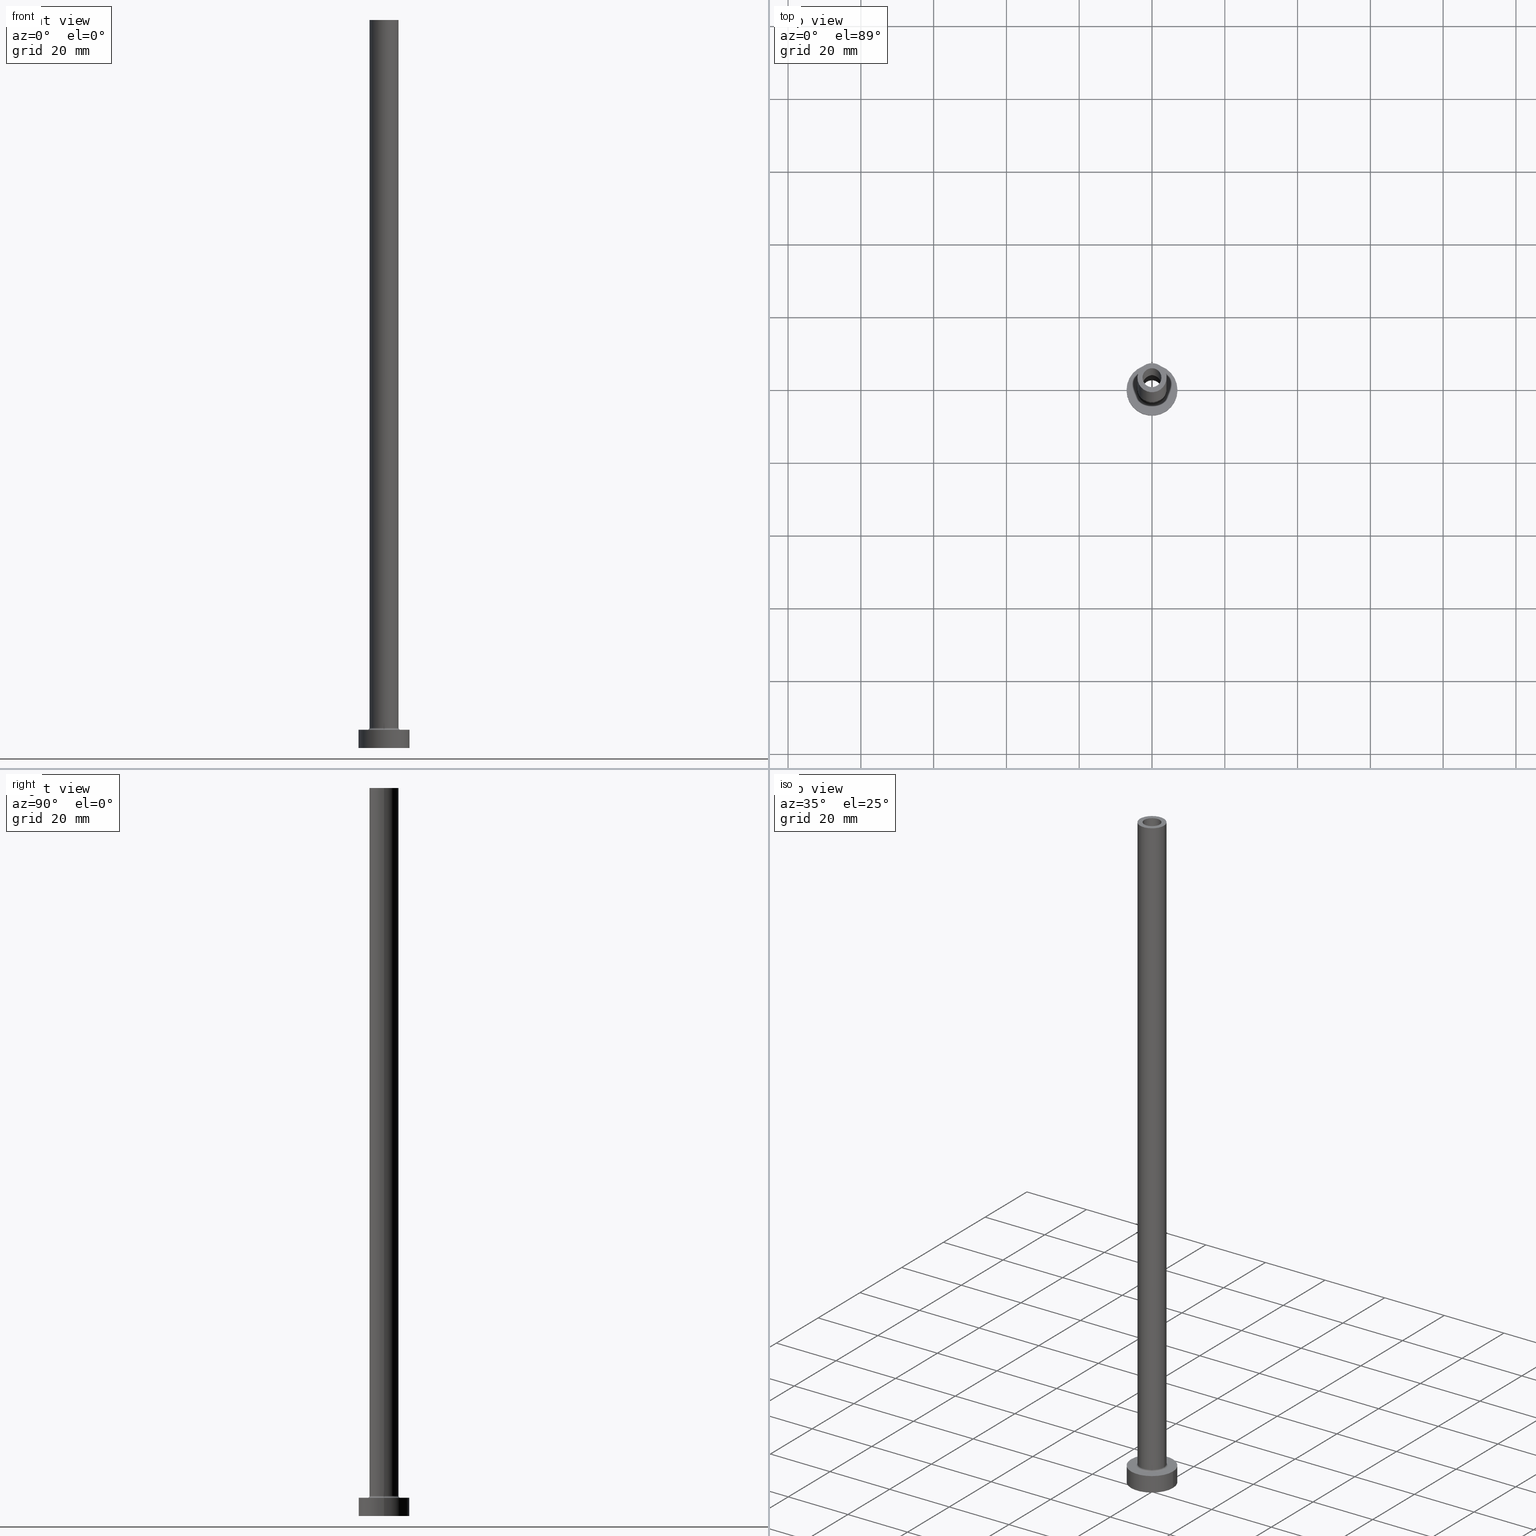
[diagram: canonical four-view strip — front | top / right | iso, engineering-drawing reading convention]
A machine part, canonical four-view strip (front | top / right | iso — engineering-drawing reading convention). The complete STEP part file that produces these views, byte-faithful:
ISO-10303-21;
HEADER;
FILE_DESCRIPTION (( 'STEP AP203' ),
    '1' );
FILE_NAME ('12f7.STEP',
    '2023-02-13T16:30:39',
    ( '' ),
    ( '' ),
    'SwSTEP 2.0',
    'SolidWorks 2019',
    '' );
FILE_SCHEMA (( 'CONFIG_CONTROL_DESIGN' ));
ENDSEC;

DATA;
#1 = DIRECTION ( 'NONE',  ( 1.000000000000000000, 0.000000000000000000, 0.000000000000000000 ) ) ;
#2 = CARTESIAN_POINT ( 'NONE',  ( 0.000000000000000000, 0.000000000000000000, 200.0000000000000000 ) ) ;
#3 = CIRCLE ( 'NONE', #268, 2.750000000000000000 ) ;
#4 = APPROVAL_PERSON_ORGANIZATION ( #178, #272, #236 ) ;
#5 = FACE_OUTER_BOUND ( 'NONE', #34, .T. ) ;
#6 = PRODUCT_RELATED_PRODUCT_CATEGORY ( 'detail', '', ( #193 ) ) ;
#7 = CARTESIAN_POINT ( 'NONE',  ( 0.000000000000000000, 0.000000000000000000, 155.0000000000000284 ) ) ;
#8 = AXIS2_PLACEMENT_3D ( 'NONE', #425, #69, #211 ) ;
#9 = LOCAL_TIME ( 17, 30, 39.00000000000000000, #240 ) ;
#10 = ADVANCED_FACE ( 'NONE', ( #317 ), #77, .T. ) ;
#11 = CARTESIAN_POINT ( 'NONE',  ( 0.000000000000000000, 0.000000000000000000, 0.000000000000000000 ) ) ;
#12 = ORIENTED_EDGE ( 'NONE', *, *, #459, .F. ) ;
#13 = CARTESIAN_POINT ( 'NONE',  ( 0.000000000000000000, 0.000000000000000000, 162.7781745930520572 ) ) ;
#14 = PERSON_AND_ORGANIZATION ( #136, #256 ) ;
#15 = CARTESIAN_POINT ( 'NONE',  ( -2.600000000000000089, 0.000000000000000000, 200.0000000000000000 ) ) ;
#16 = CIRCLE ( 'NONE', #373, 2.600000000000000089 ) ;
#17 = VERTEX_POINT ( 'NONE', #257 ) ;
#18 = SECURITY_CLASSIFICATION ( '', '', #277 ) ;
#19 = CARTESIAN_POINT ( 'NONE',  ( 2.600000000000000089, 3.184081677783117698E-16, 200.0000000000000000 ) ) ;
#20 = DIRECTION ( 'NONE',  ( 1.000000000000000000, 0.000000000000000000, 0.000000000000000000 ) ) ;
#21 = VERTEX_POINT ( 'NONE', #434 ) ;
#22 = CARTESIAN_POINT ( 'NONE',  ( 0.000000000000000000, 0.000000000000000000, 200.0000000000000000 ) ) ;
#23 = DIRECTION ( 'NONE',  ( 0.000000000000000000, 0.000000000000000000, 1.000000000000000000 ) ) ;
#24 = ORIENTED_EDGE ( 'NONE', *, *, #444, .T. ) ;
#25 = APPROVAL_STATUS ( 'not_yet_approved' ) ;
#26 = DIRECTION ( 'NONE',  ( -1.000000000000000000, 0.000000000000000000, 0.000000000000000000 ) ) ;
#27 = APPROVAL_PERSON_ORGANIZATION ( #323, #86, #397 ) ;
#28 = DIRECTION ( 'NONE',  ( 0.000000000000000000, 0.000000000000000000, 1.000000000000000000 ) ) ;
#29 = DIRECTION ( 'NONE',  ( 0.000000000000000000, 0.000000000000000000, 1.000000000000000000 ) ) ;
#30 = ORIENTED_EDGE ( 'NONE', *, *, #171, .F. ) ;
#31 = DATE_AND_TIME ( #74, #119 ) ;
#32 = DIRECTION ( 'NONE',  ( 1.000000000000000000, 0.000000000000000000, 0.000000000000000000 ) ) ;
#33 = VERTEX_POINT ( 'NONE', #191 ) ;
#34 = EDGE_LOOP ( 'NONE', ( #338, #52, #254, #126 ) ) ;
#35 = COORDINATED_UNIVERSAL_TIME_OFFSET ( 1, 0, .AHEAD. ) ;
#36 = DIRECTION ( 'NONE',  ( -0.000000000000000000, -0.000000000000000000, -1.000000000000000000 ) ) ;
#37 = ORIENTED_EDGE ( 'NONE', *, *, #395, .T. ) ;
#38 = AXIS2_PLACEMENT_3D ( 'NONE', #121, #185, #84 ) ;
#39 = CIRCLE ( 'NONE', #289, 7.000000000000000000 ) ;
#40 = CARTESIAN_POINT ( 'NONE',  ( -7.000000000000000000, 0.000000000000000000, 5.000000000000000000 ) ) ;
#41 = CARTESIAN_POINT ( 'NONE',  ( 2.750000000000000000, 3.367778697655221012E-16, 0.000000000000000000 ) ) ;
#42 = DIRECTION ( 'NONE',  ( 0.000000000000000000, 0.000000000000000000, -1.000000000000000000 ) ) ;
#43 = CARTESIAN_POINT ( 'NONE',  ( 0.000000000000000000, 0.000000000000000000, 155.0000000000000284 ) ) ;
#44 = DIRECTION ( 'NONE',  ( -1.000000000000000000, 0.000000000000000000, 0.000000000000000000 ) ) ;
#45 = CLOSED_SHELL ( 'NONE', ( #224, #364, #169, #163, #354, #10, #219, #266, #336, #284, #110, #81, #376, #402 ) ) ;
#46 = AXIS2_PLACEMENT_3D ( 'NONE', #428, #247, #111 ) ;
#47 = APPROVAL_PERSON_ORGANIZATION ( #438, #326, #407 ) ;
#48 = DIRECTION ( 'NONE',  ( -1.000000000000000000, 1.224646799147351482E-16, 0.000000000000000000 ) ) ;
#49 = PRODUCT_DEFINITION_SHAPE ( 'NONE', 'NONE',  #154 ) ;
#50 = EDGE_CURVE ( 'NONE', #161, #279, #370, .T. ) ;
#51 = VERTEX_POINT ( 'NONE', #337 ) ;
#52 = ORIENTED_EDGE ( 'NONE', *, *, #409, .T. ) ;
#53 = PERSON_AND_ORGANIZATION_ROLE ( 'creator' ) ;
#54 = CARTESIAN_POINT ( 'NONE',  ( 2.600000000000000089, 3.184081677783117698E-16, 155.0000000000000284 ) ) ;
#55 = VECTOR ( 'NONE', #275, 1000.000000000000000 ) ;
#56 = EDGE_LOOP ( 'NONE', ( #238, #270 ) ) ;
#57 = DIRECTION ( 'NONE',  ( 0.000000000000000000, 0.000000000000000000, -1.000000000000000000 ) ) ;
#58 = DIRECTION ( 'NONE',  ( 1.000000000000000000, 0.000000000000000000, 0.000000000000000000 ) ) ;
#59 = EDGE_CURVE ( 'NONE', #382, #282, #131, .T. ) ;
#60 = ORIENTED_EDGE ( 'NONE', *, *, #117, .T. ) ;
#61 = LINE ( 'NONE', #99, #55 ) ;
#62 = ORIENTED_EDGE ( 'NONE', *, *, #409, .F. ) ;
#63 = CIRCLE ( 'NONE', #168, 7.000000000000000000 ) ;
#64 = ORIENTED_EDGE ( 'NONE', *, *, #137, .F. ) ;
#65 = CARTESIAN_POINT ( 'NONE',  ( 0.000000000000000000, 0.000000000000000000, 200.0000000000000000 ) ) ;
#66 = SHAPE_DEFINITION_REPRESENTATION ( #49, #294 ) ;
#67 = DIRECTION ( 'NONE',  ( 0.000000000000000000, 0.000000000000000000, 1.000000000000000000 ) ) ;
#68 = ORIENTED_EDGE ( 'NONE', *, *, #291, .T. ) ;
#69 = DIRECTION ( 'NONE',  ( 0.000000000000000000, 0.000000000000000000, 1.000000000000000000 ) ) ;
#70 = ORIENTED_EDGE ( 'NONE', *, *, #444, .F. ) ;
#71 = CIRCLE ( 'NONE', #333, 4.000000000000000000 ) ;
#72 = LINE ( 'NONE', #359, #159 ) ;
#73 = CC_DESIGN_PERSON_AND_ORGANIZATION_ASSIGNMENT ( #342, #53, ( #154 ) ) ;
#74 = CALENDAR_DATE ( 2023, 13, 2 ) ;
#75 = FACE_OUTER_BOUND ( 'NONE', #356, .T. ) ;
#76 = DIRECTION ( 'NONE',  ( -0.000000000000000000, -0.000000000000000000, -1.000000000000000000 ) ) ;
#77 = CYLINDRICAL_SURFACE ( 'NONE', #432, 7.000000000000000000 ) ;
#78 = AXIS2_PLACEMENT_3D ( 'NONE', #451, #29, #90 ) ;
#79 = FACE_BOUND ( 'NONE', #56, .T. ) ;
#80 =( GEOMETRIC_REPRESENTATION_CONTEXT ( 3 ) GLOBAL_UNCERTAINTY_ASSIGNED_CONTEXT ( ( #220 ) ) GLOBAL_UNIT_ASSIGNED_CONTEXT ( ( #378, #92, #302 ) ) REPRESENTATION_CONTEXT ( 'NONE', 'WORKASPACE' ) );
#81 = ADVANCED_FACE ( 'NONE', ( #216 ), #158, .F. ) ;
#82 = CARTESIAN_POINT ( 'NONE',  ( 0.000000000000000000, 0.000000000000000000, 5.000000000000000000 ) ) ;
#83 = EDGE_CURVE ( 'NONE', #21, #303, #123, .T. ) ;
#84 = DIRECTION ( 'NONE',  ( 1.000000000000000000, 0.000000000000000000, 0.000000000000000000 ) ) ;
#85 = TOROIDAL_SURFACE ( 'NONE', #217, 4.500000000000000888, 0.5000000000000000000 ) ;
#86 = APPROVAL ( #245, 'NEUR�EN�' ) ;
#87 = ORIENTED_EDGE ( 'NONE', *, *, #214, .T. ) ;
#88 = EDGE_LOOP ( 'NONE', ( #392, #422, #68, #203 ) ) ;
#89 = CC_DESIGN_DATE_AND_TIME_ASSIGNMENT ( #424, #390, ( #18 ) ) ;
#90 = DIRECTION ( 'NONE',  ( 1.000000000000000000, 0.000000000000000000, 0.000000000000000000 ) ) ;
#91 = ORIENTED_EDGE ( 'NONE', *, *, #137, .T. ) ;
#92 =( NAMED_UNIT ( * ) PLANE_ANGLE_UNIT ( ) SI_UNIT ( $, .RADIAN. ) );
#93 = DIRECTION ( 'NONE',  ( 0.000000000000000000, 0.000000000000000000, 1.000000000000000000 ) ) ;
#94 = CIRCLE ( 'NONE', #404, 4.000000000000000000 ) ;
#95 = ORIENTED_EDGE ( 'NONE', *, *, #83, .F. ) ;
#96 = CYLINDRICAL_SURFACE ( 'NONE', #374, 2.600000000000000089 ) ;
#97 = CYLINDRICAL_SURFACE ( 'NONE', #401, 2.600000000000000089 ) ;
#98 = VERTEX_POINT ( 'NONE', #363 ) ;
#99 = CARTESIAN_POINT ( 'NONE',  ( 4.000000000000000000, 4.898587196589412829E-16, 200.0000000000000000 ) ) ;
#100 = CARTESIAN_POINT ( 'NONE',  ( 0.000000000000000000, 0.000000000000000000, 155.0000000000000284 ) ) ;
#101 = DIRECTION ( 'NONE',  ( 0.000000000000000000, 0.000000000000000000, -1.000000000000000000 ) ) ;
#102 = CIRCLE ( 'NONE', #411, 2.750000000000000000 ) ;
#103 = ORIENTED_EDGE ( 'NONE', *, *, #246, .T. ) ;
#104 = PERSON_AND_ORGANIZATION ( #136, #256 ) ;
#105 = DIRECTION ( 'NONE',  ( 0.000000000000000000, 0.000000000000000000, 1.000000000000000000 ) ) ;
#106 = EDGE_LOOP ( 'NONE', ( #415, #259 ) ) ;
#107 = LINE ( 'NONE', #40, #353 ) ;
#108 = MANIFOLD_SOLID_BREP ( 'Odebrat vysunut�m4', #45 ) ;
#109 = EDGE_CURVE ( 'NONE', #348, #17, #190, .T. ) ;
#110 = ADVANCED_FACE ( 'NONE', ( #226 ), #150, .F. ) ;
#111 = DIRECTION ( 'NONE',  ( 1.000000000000000000, 0.000000000000000000, 0.000000000000000000 ) ) ;
#112 = AXIS2_PLACEMENT_3D ( 'NONE', #210, #332, #329 ) ;
#113 = DATE_TIME_ROLE ( 'creation_date' ) ;
#114 = PRODUCT_DEFINITION_FORMATION_WITH_SPECIFIED_SOURCE ( 'LIBOVOLN�', '', #193, .NOT_KNOWN. ) ;
#115 = FACE_BOUND ( 'NONE', #106, .T. ) ;
#116 = CYLINDRICAL_SURFACE ( 'NONE', #143, 7.000000000000000000 ) ;
#117 = EDGE_CURVE ( 'NONE', #17, #51, #118, .T. ) ;
#118 = CIRCLE ( 'NONE', #208, 4.500000000000000888 ) ;
#119 = LOCAL_TIME ( 17, 30, 39.00000000000000000, #349 ) ;
#120 = DIRECTION ( 'NONE',  ( 0.000000000000000000, 0.000000000000000000, 1.000000000000000000 ) ) ;
#121 = CARTESIAN_POINT ( 'NONE',  ( 0.000000000000000000, 0.000000000000000000, 5.000000000000000000 ) ) ;
#122 = ORIENTED_EDGE ( 'NONE', *, *, #50, .F. ) ;
#123 = CIRCLE ( 'NONE', #38, 7.000000000000000000 ) ;
#124 = ORIENTED_EDGE ( 'NONE', *, *, #316, .F. ) ;
#125 = LINE ( 'NONE', #19, #218 ) ;
#126 = ORIENTED_EDGE ( 'NONE', *, *, #426, .F. ) ;
#127 = CARTESIAN_POINT ( 'NONE',  ( 0.000000000000000000, 0.000000000000000000, 0.000000000000000000 ) ) ;
#128 = EDGE_CURVE ( 'NONE', #282, #382, #102, .T. ) ;
#129 = DIRECTION ( 'NONE',  ( 1.000000000000000000, 0.000000000000000000, 0.000000000000000000 ) ) ;
#130 = CARTESIAN_POINT ( 'NONE',  ( 0.000000000000000000, 0.000000000000000000, 5.000000000000000000 ) ) ;
#131 = CIRCLE ( 'NONE', #455, 2.750000000000000000 ) ;
#132 = CC_DESIGN_APPROVAL ( #326, ( #154 ) ) ;
#133 = ORIENTED_EDGE ( 'NONE', *, *, #291, .F. ) ;
#134 = DIRECTION ( 'NONE',  ( -1.000000000000000000, 0.000000000000000000, 0.000000000000000000 ) ) ;
#135 = VERTEX_POINT ( 'NONE', #54 ) ;
#136 = PERSON ( 'NEUR�EN�', 'NEUR�EN�', 'NEUR�EN�', ('NEUR�EN�'), ('NEUR�EN�'), ('NEUR�EN�') ) ;
#137 = EDGE_CURVE ( 'NONE', #51, #17, #234, .T. ) ;
#138 = CC_DESIGN_PERSON_AND_ORGANIZATION_ASSIGNMENT ( #174, #453, ( #114 ) ) ;
#139 = PERSON_AND_ORGANIZATION_ROLE ( 'design_supplier' ) ;
#140 = APPLICATION_CONTEXT ( 'configuration controlled 3d designs of mechanical parts and assemblies' ) ;
#141 = DIRECTION ( 'NONE',  ( 1.000000000000000000, 0.000000000000000000, 0.000000000000000000 ) ) ;
#142 = AXIS2_PLACEMENT_3D ( 'NONE', #198, #408, #201 ) ;
#143 = AXIS2_PLACEMENT_3D ( 'NONE', #250, #76, #44 ) ;
#144 = CARTESIAN_POINT ( 'NONE',  ( -2.600000000000000089, 0.000000000000000000, 155.0000000000000284 ) ) ;
#145 = ORIENTED_EDGE ( 'NONE', *, *, #117, .F. ) ;
#146 = EDGE_LOOP ( 'NONE', ( #62, #406, #164, #423 ) ) ;
#147 = CARTESIAN_POINT ( 'NONE',  ( 0.000000000000000000, 0.000000000000000000, 5.500000000000005329 ) ) ;
#148 = ORIENTED_EDGE ( 'NONE', *, *, #128, .F. ) ;
#149 = CARTESIAN_POINT ( 'NONE',  ( 0.000000000000000000, 0.000000000000000000, 0.000000000000000000 ) ) ;
#150 = TOROIDAL_SURFACE ( 'NONE', #78, 4.500000000000000888, 0.5000000000000000000 ) ;
#151 = CARTESIAN_POINT ( 'NONE',  ( -4.000000000000000000, 0.000000000000000000, 5.500000000000005329 ) ) ;
#152 = DIRECTION ( 'NONE',  ( 1.000000000000000000, 0.000000000000000000, -0.000000000000000000 ) ) ;
#153 = AXIS2_PLACEMENT_3D ( 'NONE', #237, #241, #324 ) ;
#154 = PRODUCT_DEFINITION ( 'NEZN�M�', '', #114, #295 ) ;
#155 = ORIENTED_EDGE ( 'NONE', *, *, #109, .T. ) ;
#156 = EDGE_LOOP ( 'NONE', ( #12, #176, #274, #318 ) ) ;
#157 = CARTESIAN_POINT ( 'NONE',  ( -2.750000000000000000, 0.000000000000000000, 162.7781745930520572 ) ) ;
#158 = CYLINDRICAL_SURFACE ( 'NONE', #320, 2.750000000000000000 ) ;
#159 = VECTOR ( 'NONE', #286, 1000.000000000000000 ) ;
#160 = AXIS2_PLACEMENT_3D ( 'NONE', #65, #228, #413 ) ;
#161 = VERTEX_POINT ( 'NONE', #350 ) ;
#162 = DATE_AND_TIME ( #375, #321 ) ;
#163 = ADVANCED_FACE ( 'NONE', ( #269 ), #273, .T. ) ;
#164 = ORIENTED_EDGE ( 'NONE', *, *, #426, .T. ) ;
#165 = FACE_OUTER_BOUND ( 'NONE', #439, .T. ) ;
#166 = CARTESIAN_POINT ( 'NONE',  ( 2.750000000000000000, 3.367778697655221012E-16, 162.7781745930520572 ) ) ;
#167 = CARTESIAN_POINT ( 'NONE',  ( 4.000000000000000000, 4.898587196589412829E-16, 200.0000000000000000 ) ) ;
#168 = AXIS2_PLACEMENT_3D ( 'NONE', #400, #328, #1 ) ;
#169 = ADVANCED_FACE ( 'NONE', ( #410 ), #85, .F. ) ;
#170 = EDGE_LOOP ( 'NONE', ( #387, #133 ) ) ;
#171 = EDGE_CURVE ( 'NONE', #279, #135, #16, .T. ) ;
#172 = DIRECTION ( 'NONE',  ( -0.000000000000000000, -0.000000000000000000, -1.000000000000000000 ) ) ;
#173 = ORIENTED_EDGE ( 'NONE', *, *, #334, .F. ) ;
#174 = PERSON_AND_ORGANIZATION ( #136, #256 ) ;
#175 = DIRECTION ( 'NONE',  ( -0.000000000000000000, -0.000000000000000000, -1.000000000000000000 ) ) ;
#176 = ORIENTED_EDGE ( 'NONE', *, *, #248, .T. ) ;
#177 = VERTEX_POINT ( 'NONE', #346 ) ;
#178 = PERSON_AND_ORGANIZATION ( #136, #256 ) ;
#179 = CYLINDRICAL_SURFACE ( 'NONE', #251, 2.750000000000000000 ) ;
#180 = EDGE_LOOP ( 'NONE', ( #173, #204 ) ) ;
#181 = PLANE ( 'NONE',  #8 ) ;
#182 = APPROVAL_STATUS ( 'not_yet_approved' ) ;
#183 = DIRECTION ( 'NONE',  ( 1.000000000000000000, 0.000000000000000000, -0.000000000000000000 ) ) ;
#184 = DIRECTION ( 'NONE',  ( 1.000000000000000000, 0.000000000000000000, 0.000000000000000000 ) ) ;
#185 = DIRECTION ( 'NONE',  ( 0.000000000000000000, 0.000000000000000000, 1.000000000000000000 ) ) ;
#186 = AXIS2_PLACEMENT_3D ( 'NONE', #147, #105, #184 ) ;
#187 = EDGE_CURVE ( 'NONE', #177, #239, #94, .T. ) ;
#188 = LOCAL_TIME ( 17, 30, 39.00000000000000000, #194 ) ;
#189 = CARTESIAN_POINT ( 'NONE',  ( 0.000000000000000000, 0.000000000000000000, 5.500000000000005329 ) ) ;
#190 = CIRCLE ( 'NONE', #287, 0.5000000000000004441 ) ;
#191 = CARTESIAN_POINT ( 'NONE',  ( 4.000000000000000000, 4.898587196589412829E-16, 5.500000000000005329 ) ) ;
#192 = ORIENTED_EDGE ( 'NONE', *, *, #59, .F. ) ;
#193 = PRODUCT ( '12f7', '12f7', '', ( #262 ) ) ;
#194 = COORDINATED_UNIVERSAL_TIME_OFFSET ( 1, 0, .AHEAD. ) ;
#195 = FACE_BOUND ( 'NONE', #369, .T. ) ;
#196 = VECTOR ( 'NONE', #307, 1000.000000000000000 ) ;
#197 = APPLICATION_PROTOCOL_DEFINITION ( 'international standard', 'config_control_design', 1994, #140 ) ;
#198 = CARTESIAN_POINT ( 'NONE',  ( 4.500000000000000888, 0.000000000000000000, 5.500000000000005329 ) ) ;
#199 = DIRECTION ( 'NONE',  ( -0.000000000000000000, -0.000000000000000000, -1.000000000000000000 ) ) ;
#200 = EDGE_LOOP ( 'NONE', ( #206, #155, #64, #460 ) ) ;
#201 = DIRECTION ( 'NONE',  ( 0.000000000000000000, 0.000000000000000000, -1.000000000000000000 ) ) ;
#202 = AXIS2_PLACEMENT_3D ( 'NONE', #231, #381, #440 ) ;
#203 = ORIENTED_EDGE ( 'NONE', *, *, #246, .F. ) ;
#204 = ORIENTED_EDGE ( 'NONE', *, *, #285, .F. ) ;
#205 = FACE_OUTER_BOUND ( 'NONE', #242, .T. ) ;
#206 = ORIENTED_EDGE ( 'NONE', *, *, #309, .F. ) ;
#207 = CARTESIAN_POINT ( 'NONE',  ( -2.750000000000000000, 0.000000000000000000, 155.0000000000000284 ) ) ;
#208 = AXIS2_PLACEMENT_3D ( 'NONE', #379, #172, #314 ) ;
#209 = PERSON_AND_ORGANIZATION ( #136, #256 ) ;
#210 = CARTESIAN_POINT ( 'NONE',  ( 0.000000000000000000, 0.000000000000000000, 155.0000000000000284 ) ) ;
#211 = DIRECTION ( 'NONE',  ( 1.000000000000000000, 0.000000000000000000, -0.000000000000000000 ) ) ;
#212 = EDGE_CURVE ( 'NONE', #135, #279, #244, .T. ) ;
#213 = DIRECTION ( 'NONE',  ( -1.000000000000000000, 0.000000000000000000, 0.000000000000000000 ) ) ;
#214 = EDGE_CURVE ( 'NONE', #33, #51, #340, .T. ) ;
#215 = FACE_OUTER_BOUND ( 'NONE', #170, .T. ) ;
#216 = FACE_OUTER_BOUND ( 'NONE', #146, .T. ) ;
#217 = AXIS2_PLACEMENT_3D ( 'NONE', #454, #93, #20 ) ;
#218 = VECTOR ( 'NONE', #233, 1000.000000000000000 ) ;
#219 = ADVANCED_FACE ( 'NONE', ( #195, #165 ), #308, .T. ) ;
#220 = UNCERTAINTY_MEASURE_WITH_UNIT (LENGTH_MEASURE( 1.000000000000000082E-05 ), #378, 'distance_accuracy_value', 'NONE');
#221 = DIRECTION ( 'NONE',  ( 1.224646799147353207E-16, 1.000000000000000000, -0.000000000000000000 ) ) ;
#222 = ORIENTED_EDGE ( 'NONE', *, *, #258, .T. ) ;
#223 = ORIENTED_EDGE ( 'NONE', *, *, #109, .F. ) ;
#224 = ADVANCED_FACE ( 'NONE', ( #448 ), #97, .F. ) ;
#225 = COORDINATED_UNIVERSAL_TIME_OFFSET ( 1, 0, .AHEAD. ) ;
#226 = FACE_OUTER_BOUND ( 'NONE', #405, .T. ) ;
#227 = LOCAL_TIME ( 17, 30, 39.00000000000000000, #35 ) ;
#228 = DIRECTION ( 'NONE',  ( 0.000000000000000000, 0.000000000000000000, 1.000000000000000000 ) ) ;
#229 = CARTESIAN_POINT ( 'NONE',  ( 0.000000000000000000, 0.000000000000000000, 200.0000000000000000 ) ) ;
#230 = DIRECTION ( 'NONE',  ( 1.000000000000000000, 0.000000000000000000, 0.000000000000000000 ) ) ;
#231 = CARTESIAN_POINT ( 'NONE',  ( 0.000000000000000000, 0.000000000000000000, 155.0000000000000284 ) ) ;
#232 = CC_DESIGN_PERSON_AND_ORGANIZATION_ASSIGNMENT ( #104, #456, ( #18 ) ) ;
#233 = DIRECTION ( 'NONE',  ( 0.000000000000000000, 0.000000000000000000, -1.000000000000000000 ) ) ;
#234 = CIRCLE ( 'NONE', #446, 4.500000000000000888 ) ;
#235 = ORIENTED_EDGE ( 'NONE', *, *, #299, .T. ) ;
#236 = APPROVAL_ROLE ( '' ) ;
#237 = CARTESIAN_POINT ( 'NONE',  ( 0.000000000000000000, 0.000000000000000000, 200.0000000000000000 ) ) ;
#238 = ORIENTED_EDGE ( 'NONE', *, *, #171, .T. ) ;
#239 = VERTEX_POINT ( 'NONE', #167 ) ;
#240 = COORDINATED_UNIVERSAL_TIME_OFFSET ( 1, 0, .AHEAD. ) ;
#241 = DIRECTION ( 'NONE',  ( 0.000000000000000000, 0.000000000000000000, 1.000000000000000000 ) ) ;
#242 = EDGE_LOOP ( 'NONE', ( #347, #391, #449, #441 ) ) ;
#243 = CALENDAR_DATE ( 2023, 13, 2 ) ;
#244 = CIRCLE ( 'NONE', #202, 2.600000000000000089 ) ;
#245 = APPROVAL_STATUS ( 'not_yet_approved' ) ;
#246 = EDGE_CURVE ( 'NONE', #21, #417, #107, .T. ) ;
#247 = DIRECTION ( 'NONE',  ( 0.000000000000000000, 0.000000000000000000, 1.000000000000000000 ) ) ;
#248 = EDGE_CURVE ( 'NONE', #98, #161, #419, .T. ) ;
#249 = DATE_AND_TIME ( #418, #188 ) ;
#250 = CARTESIAN_POINT ( 'NONE',  ( 0.000000000000000000, 0.000000000000000000, 5.000000000000000000 ) ) ;
#251 = AXIS2_PLACEMENT_3D ( 'NONE', #319, #296, #298 ) ;
#252 = CARTESIAN_POINT ( 'NONE',  ( -2.750000000000000000, 0.000000000000000000, 0.000000000000000000 ) ) ;
#253 = DIRECTION ( 'NONE',  ( -0.000000000000000000, -0.000000000000000000, -1.000000000000000000 ) ) ;
#254 = ORIENTED_EDGE ( 'NONE', *, *, #128, .T. ) ;
#255 = AXIS2_PLACEMENT_3D ( 'NONE', #414, #343, #315 ) ;
#256 = ORGANIZATION ( 'NEUR�EN�', 'NEUR�EN�', '' ) ;
#257 = CARTESIAN_POINT ( 'NONE',  ( -4.500000000000000888, 5.510910596163088569E-16, 5.000000000000002665 ) ) ;
#258 = EDGE_CURVE ( 'NONE', #417, #445, #436, .T. ) ;
#259 = ORIENTED_EDGE ( 'NONE', *, *, #248, .F. ) ;
#260 = PERSON_AND_ORGANIZATION_ROLE ( 'design_owner' ) ;
#261 = DIRECTION ( 'NONE',  ( -1.000000000000000000, 0.000000000000000000, 0.000000000000000000 ) ) ;
#262 = MECHANICAL_CONTEXT ( 'NONE', #366, 'mechanical' ) ;
#263 = CARTESIAN_POINT ( 'NONE',  ( 0.000000000000000000, 0.000000000000000000, 200.0000000000000000 ) ) ;
#264 = EDGE_CURVE ( 'NONE', #161, #98, #301, .T. ) ;
#265 = VERTEX_POINT ( 'NONE', #207 ) ;
#266 = ADVANCED_FACE ( 'NONE', ( #461, #215 ), #278, .F. ) ;
#267 = LINE ( 'NONE', #450, #313 ) ;
#268 = AXIS2_PLACEMENT_3D ( 'NONE', #43, #394, #420 ) ;
#269 = FACE_OUTER_BOUND ( 'NONE', #300, .T. ) ;
#270 = ORIENTED_EDGE ( 'NONE', *, *, #212, .T. ) ;
#271 = LINE ( 'NONE', #157, #196 ) ;
#272 = APPROVAL ( #182, 'NEUR�EN�' ) ;
#273 = CYLINDRICAL_SURFACE ( 'NONE', #255, 4.000000000000000000 ) ;
#274 = ORIENTED_EDGE ( 'NONE', *, *, #50, .T. ) ;
#275 = DIRECTION ( 'NONE',  ( -0.000000000000000000, -0.000000000000000000, -1.000000000000000000 ) ) ;
#276 = EDGE_LOOP ( 'NONE', ( #306, #335, #30, #122 ) ) ;
#277 = SECURITY_CLASSIFICATION_LEVEL ( 'unclassified' ) ;
#278 = PLANE ( 'NONE',  #367 ) ;
#279 = VERTEX_POINT ( 'NONE', #144 ) ;
#280 = DIRECTION ( 'NONE',  ( 0.000000000000000000, 0.000000000000000000, 1.000000000000000000 ) ) ;
#281 = ORIENTED_EDGE ( 'NONE', *, *, #187, .T. ) ;
#282 = VERTEX_POINT ( 'NONE', #41 ) ;
#283 = APPROVAL_DATE_TIME ( #31, #86 ) ;
#284 = ADVANCED_FACE ( 'NONE', ( #115, #75 ), #181, .T. ) ;
#285 = EDGE_CURVE ( 'NONE', #297, #265, #3, .T. ) ;
#286 = DIRECTION ( 'NONE',  ( -0.000000000000000000, -0.000000000000000000, -1.000000000000000000 ) ) ;
#287 = AXIS2_PLACEMENT_3D ( 'NONE', #331, #221, #48 ) ;
#288 = CARTESIAN_POINT ( 'NONE',  ( 0.000000000000000000, 0.000000000000000000, 5.000000000000000000 ) ) ;
#289 = AXIS2_PLACEMENT_3D ( 'NONE', #82, #120, #230 ) ;
#290 = FACE_OUTER_BOUND ( 'NONE', #88, .T. ) ;
#291 = EDGE_CURVE ( 'NONE', #445, #417, #63, .T. ) ;
#292 = CC_DESIGN_SECURITY_CLASSIFICATION ( #18, ( #114 ) ) ;
#293 = DIRECTION ( 'NONE',  ( 0.000000000000000000, 0.000000000000000000, 1.000000000000000000 ) ) ;
#294 = ADVANCED_BREP_SHAPE_REPRESENTATION ( '12f7', ( #108, #341 ), #80 ) ;
#295 = DESIGN_CONTEXT ( 'detailed design', #140, 'design' ) ;
#296 = DIRECTION ( 'NONE',  ( 0.000000000000000000, 0.000000000000000000, -1.000000000000000000 ) ) ;
#297 = VERTEX_POINT ( 'NONE', #361 ) ;
#298 = DIRECTION ( 'NONE',  ( -1.000000000000000000, 0.000000000000000000, 0.000000000000000000 ) ) ;
#299 = EDGE_CURVE ( 'NONE', #33, #348, #384, .T. ) ;
#300 = EDGE_LOOP ( 'NONE', ( #70, #437, #235, #339 ) ) ;
#301 = CIRCLE ( 'NONE', #46, 2.600000000000000089 ) ;
#302 =( NAMED_UNIT ( * ) SI_UNIT ( $, .STERADIAN. ) SOLID_ANGLE_UNIT ( ) );
#303 = VERTEX_POINT ( 'NONE', #430 ) ;
#304 = DIRECTION ( 'NONE',  ( -0.000000000000000000, -0.000000000000000000, -1.000000000000000000 ) ) ;
#305 = DIRECTION ( 'NONE',  ( 0.000000000000000000, 0.000000000000000000, 1.000000000000000000 ) ) ;
#306 = ORIENTED_EDGE ( 'NONE', *, *, #264, .T. ) ;
#307 = DIRECTION ( 'NONE',  ( 0.000000000000000000, 0.000000000000000000, -1.000000000000000000 ) ) ;
#308 = PLANE ( 'NONE',  #330 ) ;
#309 = EDGE_CURVE ( 'NONE', #348, #33, #71, .T. ) ;
#310 = CARTESIAN_POINT ( 'NONE',  ( -7.000000000000000000, 0.000000000000000000, 0.000000000000000000 ) ) ;
#311 = CIRCLE ( 'NONE', #112, 2.750000000000000000 ) ;
#312 = DIRECTION ( 'NONE',  ( 0.000000000000000000, 0.000000000000000000, -1.000000000000000000 ) ) ;
#313 = VECTOR ( 'NONE', #304, 1000.000000000000000 ) ;
#314 = DIRECTION ( 'NONE',  ( 1.000000000000000000, 0.000000000000000000, 0.000000000000000000 ) ) ;
#315 = DIRECTION ( 'NONE',  ( -1.000000000000000000, 0.000000000000000000, 0.000000000000000000 ) ) ;
#316 = EDGE_CURVE ( 'NONE', #303, #445, #72, .T. ) ;
#317 = FACE_OUTER_BOUND ( 'NONE', #325, .T. ) ;
#318 = ORIENTED_EDGE ( 'NONE', *, *, #212, .F. ) ;
#319 = CARTESIAN_POINT ( 'NONE',  ( 0.000000000000000000, 0.000000000000000000, 162.7781745930520572 ) ) ;
#320 = AXIS2_PLACEMENT_3D ( 'NONE', #13, #42, #213 ) ;
#321 = LOCAL_TIME ( 17, 30, 39.00000000000000000, #225 ) ;
#322 = ORIENTED_EDGE ( 'NONE', *, *, #83, .T. ) ;
#323 = PERSON_AND_ORGANIZATION ( #136, #256 ) ;
#324 = DIRECTION ( 'NONE',  ( 1.000000000000000000, 0.000000000000000000, 0.000000000000000000 ) ) ;
#325 = EDGE_LOOP ( 'NONE', ( #124, #95, #103, #222 ) ) ;
#326 = APPROVAL ( #25, 'NEUR�EN�' ) ;
#327 = DATE_AND_TIME ( #388, #227 ) ;
#328 = DIRECTION ( 'NONE',  ( 0.000000000000000000, 0.000000000000000000, 1.000000000000000000 ) ) ;
#329 = DIRECTION ( 'NONE',  ( 1.000000000000000000, 0.000000000000000000, 0.000000000000000000 ) ) ;
#330 = AXIS2_PLACEMENT_3D ( 'NONE', #130, #443, #412 ) ;
#331 = CARTESIAN_POINT ( 'NONE',  ( -4.500000000000000888, 5.510910596163089556E-16, 5.500000000000005329 ) ) ;
#332 = DIRECTION ( 'NONE',  ( 0.000000000000000000, 0.000000000000000000, 1.000000000000000000 ) ) ;
#333 = AXIS2_PLACEMENT_3D ( 'NONE', #189, #67, #352 ) ;
#334 = EDGE_CURVE ( 'NONE', #265, #297, #311, .T. ) ;
#335 = ORIENTED_EDGE ( 'NONE', *, *, #459, .T. ) ;
#336 = ADVANCED_FACE ( 'NONE', ( #205 ), #357, .T. ) ;
#337 = CARTESIAN_POINT ( 'NONE',  ( 4.500000000000000888, 0.000000000000000000, 5.000000000000002665 ) ) ;
#338 = ORIENTED_EDGE ( 'NONE', *, *, #334, .T. ) ;
#339 = ORIENTED_EDGE ( 'NONE', *, *, #447, .F. ) ;
#340 = CIRCLE ( 'NONE', #142, 0.5000000000000004441 ) ;
#341 = AXIS2_PLACEMENT_3D ( 'NONE', #383, #28, #129 ) ;
#342 = PERSON_AND_ORGANIZATION ( #136, #256 ) ;
#343 = DIRECTION ( 'NONE',  ( -0.000000000000000000, -0.000000000000000000, -1.000000000000000000 ) ) ;
#344 = CC_DESIGN_PERSON_AND_ORGANIZATION_ASSIGNMENT ( #209, #139, ( #114 ) ) ;
#345 = APPLICATION_PROTOCOL_DEFINITION ( 'international standard', 'config_control_design', 1994, #366 ) ;
#346 = CARTESIAN_POINT ( 'NONE',  ( -4.000000000000000000, 0.000000000000000000, 200.0000000000000000 ) ) ;
#347 = ORIENTED_EDGE ( 'NONE', *, *, #431, .F. ) ;
#348 = VERTEX_POINT ( 'NONE', #151 ) ;
#349 = COORDINATED_UNIVERSAL_TIME_OFFSET ( 1, 0, .AHEAD. ) ;
#350 = CARTESIAN_POINT ( 'NONE',  ( -2.600000000000000089, 0.000000000000000000, 200.0000000000000000 ) ) ;
#351 = DIRECTION ( 'NONE',  ( -1.000000000000000000, 0.000000000000000000, 0.000000000000000000 ) ) ;
#352 = DIRECTION ( 'NONE',  ( 1.000000000000000000, 0.000000000000000000, 0.000000000000000000 ) ) ;
#353 = VECTOR ( 'NONE', #427, 1000.000000000000000 ) ;
#354 = ADVANCED_FACE ( 'NONE', ( #290 ), #116, .T. ) ;
#355 = CC_DESIGN_APPROVAL ( #272, ( #18 ) ) ;
#356 = EDGE_LOOP ( 'NONE', ( #281, #24 ) ) ;
#357 = CYLINDRICAL_SURFACE ( 'NONE', #386, 4.000000000000000000 ) ;
#358 = DIRECTION ( 'NONE',  ( 0.000000000000000000, 0.000000000000000000, -1.000000000000000000 ) ) ;
#359 = CARTESIAN_POINT ( 'NONE',  ( 7.000000000000000000, 8.572527594031473190E-16, 5.000000000000000000 ) ) ;
#360 = DIRECTION ( 'NONE',  ( 1.000000000000000000, 0.000000000000000000, 0.000000000000000000 ) ) ;
#361 = CARTESIAN_POINT ( 'NONE',  ( 2.750000000000000000, 3.367778697655221012E-16, 155.0000000000000284 ) ) ;
#362 = AXIS2_PLACEMENT_3D ( 'NONE', #149, #280, #398 ) ;
#363 = CARTESIAN_POINT ( 'NONE',  ( 2.600000000000000089, 3.184081677783117698E-16, 200.0000000000000000 ) ) ;
#364 = ADVANCED_FACE ( 'NONE', ( #5 ), #179, .F. ) ;
#365 = CC_DESIGN_DATE_AND_TIME_ASSIGNMENT ( #249, #113, ( #154 ) ) ;
#366 = APPLICATION_CONTEXT ( 'configuration controlled 3d designs of mechanical parts and assemblies' ) ;
#367 = AXIS2_PLACEMENT_3D ( 'NONE', #389, #458, #183 ) ;
#368 = FACE_OUTER_BOUND ( 'NONE', #180, .T. ) ;
#369 = EDGE_LOOP ( 'NONE', ( #91, #60 ) ) ;
#370 = LINE ( 'NONE', #15, #429 ) ;
#371 = EDGE_LOOP ( 'NONE', ( #192, #148 ) ) ;
#372 = APPROVAL_DATE_TIME ( #162, #326 ) ;
#373 = AXIS2_PLACEMENT_3D ( 'NONE', #100, #23, #58 ) ;
#374 = AXIS2_PLACEMENT_3D ( 'NONE', #22, #101, #134 ) ;
#375 = CALENDAR_DATE ( 2023, 13, 2 ) ;
#376 = ADVANCED_FACE ( 'NONE', ( #79, #368 ), #435, .F. ) ;
#377 = DIRECTION ( 'NONE',  ( 1.000000000000000000, 0.000000000000000000, 0.000000000000000000 ) ) ;
#378 =( LENGTH_UNIT ( ) NAMED_UNIT ( * ) SI_UNIT ( .MILLI., .METRE. ) );
#379 = CARTESIAN_POINT ( 'NONE',  ( 0.000000000000000000, 0.000000000000000000, 5.000000000000000000 ) ) ;
#380 = CARTESIAN_POINT ( 'NONE',  ( 7.000000000000000000, 8.572527594031473190E-16, 0.000000000000000000 ) ) ;
#381 = DIRECTION ( 'NONE',  ( 0.000000000000000000, 0.000000000000000000, 1.000000000000000000 ) ) ;
#382 = VERTEX_POINT ( 'NONE', #252 ) ;
#383 = CARTESIAN_POINT ( 'NONE',  ( 0.000000000000000000, 0.000000000000000000, 0.000000000000000000 ) ) ;
#384 = CIRCLE ( 'NONE', #186, 4.000000000000000000 ) ;
#385 = CARTESIAN_POINT ( 'NONE',  ( 0.000000000000000000, 0.000000000000000000, 5.000000000000000000 ) ) ;
#386 = AXIS2_PLACEMENT_3D ( 'NONE', #2, #36, #351 ) ;
#387 = ORIENTED_EDGE ( 'NONE', *, *, #258, .F. ) ;
#388 = CALENDAR_DATE ( 2023, 13, 2 ) ;
#389 = CARTESIAN_POINT ( 'NONE',  ( 0.000000000000000000, 0.000000000000000000, 0.000000000000000000 ) ) ;
#390 = DATE_TIME_ROLE ( 'classification_date' ) ;
#391 = ORIENTED_EDGE ( 'NONE', *, *, #187, .F. ) ;
#392 = ORIENTED_EDGE ( 'NONE', *, *, #395, .F. ) ;
#393 = APPROVAL_DATE_TIME ( #327, #272 ) ;
#394 = DIRECTION ( 'NONE',  ( 0.000000000000000000, 0.000000000000000000, 1.000000000000000000 ) ) ;
#395 = EDGE_CURVE ( 'NONE', #303, #21, #39, .T. ) ;
#396 = CC_DESIGN_APPROVAL ( #86, ( #114 ) ) ;
#397 = APPROVAL_ROLE ( '' ) ;
#398 = DIRECTION ( 'NONE',  ( 1.000000000000000000, 0.000000000000000000, 0.000000000000000000 ) ) ;
#399 = DIRECTION ( 'NONE',  ( -0.000000000000000000, -0.000000000000000000, -1.000000000000000000 ) ) ;
#400 = CARTESIAN_POINT ( 'NONE',  ( 0.000000000000000000, 0.000000000000000000, 0.000000000000000000 ) ) ;
#401 = AXIS2_PLACEMENT_3D ( 'NONE', #229, #312, #26 ) ;
#402 = ADVANCED_FACE ( 'NONE', ( #416 ), #96, .F. ) ;
#403 = CC_DESIGN_PERSON_AND_ORGANIZATION_ASSIGNMENT ( #14, #260, ( #193 ) ) ;
#404 = AXIS2_PLACEMENT_3D ( 'NONE', #263, #305, #141 ) ;
#405 = EDGE_LOOP ( 'NONE', ( #223, #452, #87, #145 ) ) ;
#406 = ORIENTED_EDGE ( 'NONE', *, *, #285, .T. ) ;
#407 = APPROVAL_ROLE ( '' ) ;
#408 = DIRECTION ( 'NONE',  ( 0.000000000000000000, -1.000000000000000000, 0.000000000000000000 ) ) ;
#409 = EDGE_CURVE ( 'NONE', #297, #282, #442, .T. ) ;
#410 = FACE_OUTER_BOUND ( 'NONE', #200, .T. ) ;
#411 = AXIS2_PLACEMENT_3D ( 'NONE', #127, #175, #32 ) ;
#412 = DIRECTION ( 'NONE',  ( 1.000000000000000000, 0.000000000000000000, -0.000000000000000000 ) ) ;
#413 = DIRECTION ( 'NONE',  ( 1.000000000000000000, 0.000000000000000000, 0.000000000000000000 ) ) ;
#414 = CARTESIAN_POINT ( 'NONE',  ( 0.000000000000000000, 0.000000000000000000, 200.0000000000000000 ) ) ;
#415 = ORIENTED_EDGE ( 'NONE', *, *, #264, .F. ) ;
#416 = FACE_OUTER_BOUND ( 'NONE', #156, .T. ) ;
#417 = VERTEX_POINT ( 'NONE', #310 ) ;
#418 = CALENDAR_DATE ( 2023, 13, 2 ) ;
#419 = CIRCLE ( 'NONE', #153, 2.600000000000000089 ) ;
#420 = DIRECTION ( 'NONE',  ( 1.000000000000000000, 0.000000000000000000, 0.000000000000000000 ) ) ;
#421 = AXIS2_PLACEMENT_3D ( 'NONE', #7, #293, #152 ) ;
#422 = ORIENTED_EDGE ( 'NONE', *, *, #316, .T. ) ;
#423 = ORIENTED_EDGE ( 'NONE', *, *, #59, .T. ) ;
#424 = DATE_AND_TIME ( #243, #9 ) ;
#425 = CARTESIAN_POINT ( 'NONE',  ( 0.000000000000000000, 0.000000000000000000, 200.0000000000000000 ) ) ;
#426 = EDGE_CURVE ( 'NONE', #265, #382, #271, .T. ) ;
#427 = DIRECTION ( 'NONE',  ( -0.000000000000000000, -0.000000000000000000, -1.000000000000000000 ) ) ;
#428 = CARTESIAN_POINT ( 'NONE',  ( 0.000000000000000000, 0.000000000000000000, 200.0000000000000000 ) ) ;
#429 = VECTOR ( 'NONE', #358, 1000.000000000000000 ) ;
#430 = CARTESIAN_POINT ( 'NONE',  ( 7.000000000000000000, 8.572527594031473190E-16, 5.000000000000000000 ) ) ;
#431 = EDGE_CURVE ( 'NONE', #239, #33, #61, .T. ) ;
#432 = AXIS2_PLACEMENT_3D ( 'NONE', #288, #253, #261 ) ;
#433 = VECTOR ( 'NONE', #57, 1000.000000000000000 ) ;
#434 = CARTESIAN_POINT ( 'NONE',  ( -7.000000000000000000, 0.000000000000000000, 5.000000000000000000 ) ) ;
#435 = PLANE ( 'NONE',  #421 ) ;
#436 = CIRCLE ( 'NONE', #362, 7.000000000000000000 ) ;
#437 = ORIENTED_EDGE ( 'NONE', *, *, #431, .T. ) ;
#438 = PERSON_AND_ORGANIZATION ( #136, #256 ) ;
#439 = EDGE_LOOP ( 'NONE', ( #322, #37 ) ) ;
#440 = DIRECTION ( 'NONE',  ( 1.000000000000000000, 0.000000000000000000, 0.000000000000000000 ) ) ;
#441 = ORIENTED_EDGE ( 'NONE', *, *, #309, .T. ) ;
#442 = LINE ( 'NONE', #166, #433 ) ;
#443 = DIRECTION ( 'NONE',  ( 0.000000000000000000, 0.000000000000000000, 1.000000000000000000 ) ) ;
#444 = EDGE_CURVE ( 'NONE', #239, #177, #457, .T. ) ;
#445 = VERTEX_POINT ( 'NONE', #380 ) ;
#446 = AXIS2_PLACEMENT_3D ( 'NONE', #385, #199, #377 ) ;
#447 = EDGE_CURVE ( 'NONE', #177, #348, #267, .T. ) ;
#448 = FACE_OUTER_BOUND ( 'NONE', #276, .T. ) ;
#449 = ORIENTED_EDGE ( 'NONE', *, *, #447, .T. ) ;
#450 = CARTESIAN_POINT ( 'NONE',  ( -4.000000000000000000, 0.000000000000000000, 200.0000000000000000 ) ) ;
#451 = CARTESIAN_POINT ( 'NONE',  ( 0.000000000000000000, 0.000000000000000000, 5.500000000000005329 ) ) ;
#452 = ORIENTED_EDGE ( 'NONE', *, *, #299, .F. ) ;
#453 = PERSON_AND_ORGANIZATION_ROLE ( 'creator' ) ;
#454 = CARTESIAN_POINT ( 'NONE',  ( 0.000000000000000000, 0.000000000000000000, 5.500000000000005329 ) ) ;
#455 = AXIS2_PLACEMENT_3D ( 'NONE', #11, #399, #360 ) ;
#456 = PERSON_AND_ORGANIZATION_ROLE ( 'classification_officer' ) ;
#457 = CIRCLE ( 'NONE', #160, 4.000000000000000000 ) ;
#458 = DIRECTION ( 'NONE',  ( 0.000000000000000000, 0.000000000000000000, 1.000000000000000000 ) ) ;
#459 = EDGE_CURVE ( 'NONE', #98, #135, #125, .T. ) ;
#460 = ORIENTED_EDGE ( 'NONE', *, *, #214, .F. ) ;
#461 = FACE_BOUND ( 'NONE', #371, .T. ) ;
ENDSEC;
END-ISO-10303-21;
